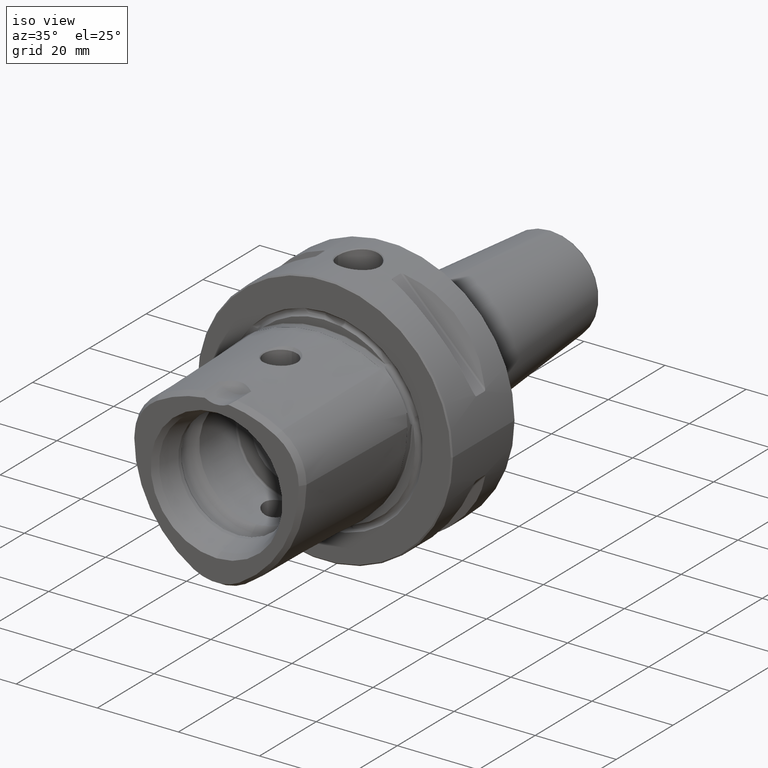
[diagram: clean part render]
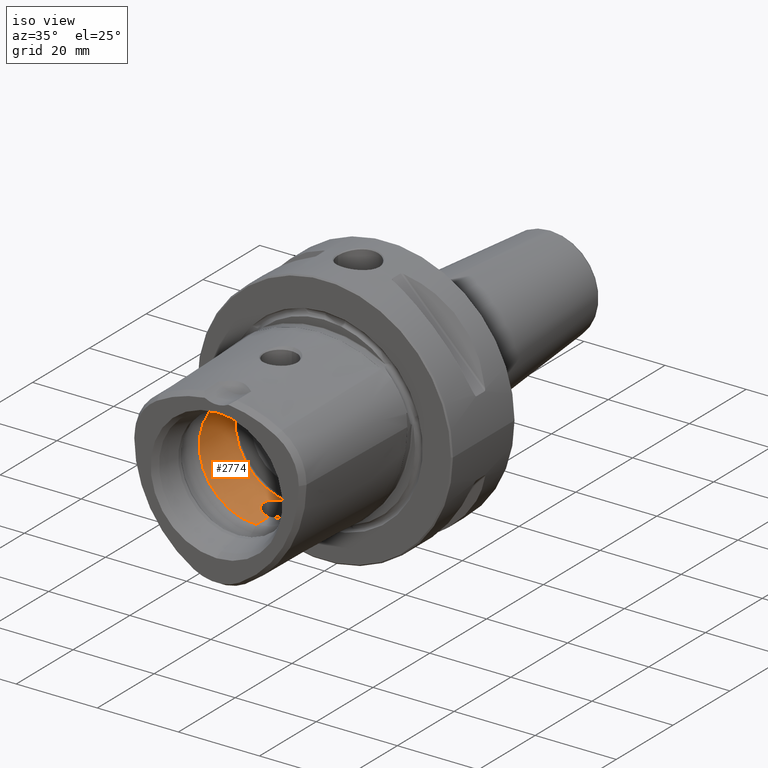
[diagram: same view with one face highlighted and labeled with its STEP entity id]
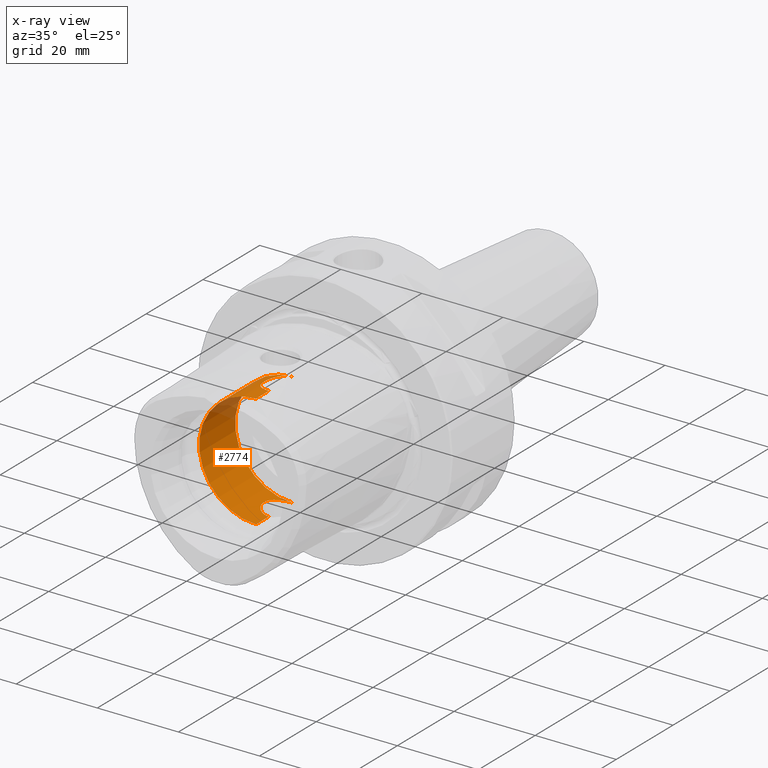
[diagram: x-ray of the same camera — body ghosted, the highlighted face saturated]
A machine part, iso view. The second image highlights one B-rep face of the part: STEP entity #2774.
The next image is the same camera in x-ray: the body ghosted, the highlighted face saturated — about 8% of this face is hidden behind the body in this view.
In plain terms, the highlighted cylindrical surface (partial cylindrical patch) has radius 14.0125 mm, axis along (0, -1, 0).
Its self-contained STEP definition (entity closure, byte-faithful):
#868=DIRECTION('',(0.E0,-1.E0,0.E0));
#869=VECTOR('',#868,4.525376459842E0);
#870=CARTESIAN_POINT('',(0.E0,-1.955E1,-1.40125E1));
#871=LINE('',#870,#869);
#872=DIRECTION('',(4.640528239452E-10,-1.E0,0.E0));
#873=VECTOR('',#872,5.000000000001E-2);
#874=CARTESIAN_POINT('',(-2.320264119726E-11,-1.14E1,-1.40125E1));
#875=LINE('',#874,#873);
#881=DIRECTION('',(-4.641506345936E-10,-1.E0,-7.105427357600E-14));
#882=VECTOR('',#881,5.000000000001E-2);
#883=CARTESIAN_POINT('',(2.320708208936E-11,-1.14E1,1.40125E1));
#884=LINE('',#883,#882);
#885=DIRECTION('',(0.E0,-1.E0,0.E0));
#886=VECTOR('',#885,4.525376459842E0);
#887=CARTESIAN_POINT('',(0.E0,-1.955E1,1.40125E1));
#888=LINE('',#887,#886);
#915=CARTESIAN_POINT('',(0.E0,-2.407537645984E1,0.E0));
#916=DIRECTION('',(0.E0,-1.E0,0.E0));
#917=DIRECTION('',(0.E0,0.E0,1.E0));
#918=AXIS2_PLACEMENT_3D('',#915,#916,#917);
#920=CARTESIAN_POINT('',(0.E0,-1.14E1,0.E0));
#921=DIRECTION('',(0.E0,-1.E0,0.E0));
#922=DIRECTION('',(0.E0,0.E0,1.E0));
#923=AXIS2_PLACEMENT_3D('',#920,#921,#922);
#935=CARTESIAN_POINT('',(0.E0,-1.955E1,1.40125E1));
#936=CARTESIAN_POINT('',(-2.840012231870E-1,-1.955E1,1.40125E1));
#937=CARTESIAN_POINT('',(-8.509281440854E-1,-1.948993891541E1,
1.399497316007E1));
#938=CARTESIAN_POINT('',(-1.659948612169E0,-1.922665839727E1,1.392118610190E1));
#939=CARTESIAN_POINT('',(-2.396268325277E0,-1.880111680287E1,1.381191695689E1));
#940=CARTESIAN_POINT('',(-3.023276698901E0,-1.823879189776E1,1.368657003126E1));
#941=CARTESIAN_POINT('',(-3.526496419009E0,-1.755071939764E1,1.356387058356E1));
#942=CARTESIAN_POINT('',(-3.874588423318E0,-1.677832444147E1,1.346706184564E1));
#943=CARTESIAN_POINT('',(-4.057244649089E0,-1.593248870608E1,1.341231614301E1));
#944=CARTESIAN_POINT('',(-4.058356679892E0,-1.507850312478E1,1.341197337895E1));
#945=CARTESIAN_POINT('',(-3.878235450261E0,-1.423279588120E1,1.346599457423E1));
#946=CARTESIAN_POINT('',(-3.531980602326E0,-1.345848119609E1,1.356243104300E1));
#947=CARTESIAN_POINT('',(-3.029048896053E0,-1.276734012908E1,1.368529907141E1));
#948=CARTESIAN_POINT('',(-2.401312457890E0,-1.220237157496E1,1.381105823170E1));
#949=CARTESIAN_POINT('',(-1.663821572693E0,-1.177492286324E1,1.392075092753E1));
#950=CARTESIAN_POINT('',(-8.531027998291E-1,-1.151037705172E1,
1.399488008178E1));
#951=CARTESIAN_POINT('',(-2.847413754738E-1,-1.145E1,1.40125E1));
#952=CARTESIAN_POINT('',(0.E0,-1.145E1,1.40125E1));
#959=CARTESIAN_POINT('',(0.E0,-1.145E1,-1.40125E1));
#960=CARTESIAN_POINT('',(-2.844974429175E-1,-1.145E1,-1.40125E1));
#961=CARTESIAN_POINT('',(-8.523767619609E-1,-1.151027414760E1,
-1.399491046402E1));
#962=CARTESIAN_POINT('',(-1.662476174666E0,-1.177437495360E1,
-1.392090173012E1));
#963=CARTESIAN_POINT('',(-2.399556238006E0,-1.220115553226E1,
-1.381135766148E1));
#964=CARTESIAN_POINT('',(-3.027065933205E0,-1.276522228054E1,
-1.368573662312E1));
#965=CARTESIAN_POINT('',(-3.530115958885E0,-1.345536134477E1,
-1.356291993693E1));
#966=CARTESIAN_POINT('',(-3.876842977551E0,-1.422868008337E1,
-1.346640034326E1));
#967=CARTESIAN_POINT('',(-4.057790449480E0,-1.507358856533E1,
-1.341214756646E1));
#968=CARTESIAN_POINT('',(-4.057782198484E0,-1.592652649125E1,
-1.341214993946E1));
#969=CARTESIAN_POINT('',(-3.876781066344E0,-1.677156565609E1,
-1.346641923171E1));
#970=CARTESIAN_POINT('',(-3.529862688162E0,-1.754509668761E1,
-1.356298747161E1));
#971=CARTESIAN_POINT('',(-3.026695355402E0,-1.823519381479E1,
-1.368582093384E1));
#972=CARTESIAN_POINT('',(-2.399055255172E0,-1.879919938920E1,
-1.381144413764E1));
#973=CARTESIAN_POINT('',(-1.662156443689E0,-1.922574742343E1,
-1.392093608901E1));
#974=CARTESIAN_POINT('',(-8.522057115433E-1,-1.948975185305E1,
-1.399491791124E1));
#975=CARTESIAN_POINT('',(-2.844431964701E-1,-1.955E1,-1.40125E1));
#976=CARTESIAN_POINT('',(0.E0,-1.955E1,-1.40125E1));
#1858=VERTEX_POINT('',#935);
#1859=VERTEX_POINT('',#952);
#1860=VERTEX_POINT('',#959);
#1861=VERTEX_POINT('',#976);
#2008=CARTESIAN_POINT('',(0.E0,-2.407537645984E1,1.40125E1));
#2009=CARTESIAN_POINT('',(0.E0,-2.407537645984E1,-1.40125E1));
#2010=VERTEX_POINT('',#2008);
#2011=VERTEX_POINT('',#2009);
#2056=CARTESIAN_POINT('',(0.E0,-1.14E1,-1.40125E1));
#2057=CARTESIAN_POINT('',(0.E0,-1.14E1,1.40125E1));
#2058=VERTEX_POINT('',#2056);
#2059=VERTEX_POINT('',#2057);
#2756=CARTESIAN_POINT('',(0.E0,-9.65E0,0.E0));
#2757=DIRECTION('',(0.E0,-1.E0,0.E0));
#2758=DIRECTION('',(0.E0,0.E0,1.E0));
#2759=AXIS2_PLACEMENT_3D('',#2756,#2757,#2758);
#2760=CYLINDRICAL_SURFACE('',#2759,1.40125E1);
#2761=ORIENTED_EDGE('',*,*,#2747,.F.);
#2762=ORIENTED_EDGE('',*,*,#2706,.F.);
#2764=ORIENTED_EDGE('',*,*,#2763,.T.);
#2765=ORIENTED_EDGE('',*,*,#2703,.F.);
#2767=ORIENTED_EDGE('',*,*,#2766,.T.);
#2768=ORIENTED_EDGE('',*,*,#2699,.T.);
#2770=ORIENTED_EDGE('',*,*,#2769,.T.);
#2771=ORIENTED_EDGE('',*,*,#2696,.T.);
#2772=EDGE_LOOP('',(#2761,#2762,#2764,#2765,#2767,#2768,#2770,#2771));
#2773=FACE_OUTER_BOUND('',#2772,.F.);
#2774=ADVANCED_FACE('',(#2773),#2760,.F.);
#919=CIRCLE('',#918,1.40125E1);
#924=CIRCLE('',#923,1.40125E1);
#953=B_SPLINE_CURVE_WITH_KNOTS('',3,(#935,#936,#937,#938,#939,#940,#941,#942,
#943,#944,#945,#946,#947,#948,#949,#950,#951,#952),.UNSPECIFIED.,.F.,.F.,(4,1,1,
1,1,1,1,1,1,1,1,1,1,1,1,4),(0.E0,6.666666666667E-2,1.333333333333E-1,2.E-1,
2.666666666667E-1,3.333333333333E-1,4.E-1,4.666666666667E-1,5.333333333333E-1,
6.E-1,6.666666666667E-1,7.333333333333E-1,8.E-1,8.666666666667E-1,
9.333333333333E-1,1.E0),.UNSPECIFIED.);
#977=B_SPLINE_CURVE_WITH_KNOTS('',3,(#959,#960,#961,#962,#963,#964,#965,#966,
#967,#968,#969,#970,#971,#972,#973,#974,#975,#976),.UNSPECIFIED.,.F.,.F.,(4,1,1,
1,1,1,1,1,1,1,1,1,1,1,1,4),(0.E0,6.666666666667E-2,1.333333333333E-1,2.E-1,
2.666666666667E-1,3.333333333333E-1,4.E-1,4.666666666667E-1,5.333333333333E-1,
6.E-1,6.666666666667E-1,7.333333333333E-1,8.E-1,8.666666666667E-1,
9.333333333333E-1,1.E0),.UNSPECIFIED.);
#2696=EDGE_CURVE('',#1861,#2011,#871,.T.);
#2699=EDGE_CURVE('',#2058,#1860,#875,.T.);
#2703=EDGE_CURVE('',#2059,#1859,#884,.T.);
#2706=EDGE_CURVE('',#1858,#2010,#888,.T.);
#2747=EDGE_CURVE('',#2010,#2011,#919,.T.);
#2763=EDGE_CURVE('',#1858,#1859,#953,.T.);
#2766=EDGE_CURVE('',#2059,#2058,#924,.T.);
#2769=EDGE_CURVE('',#1860,#1861,#977,.T.);